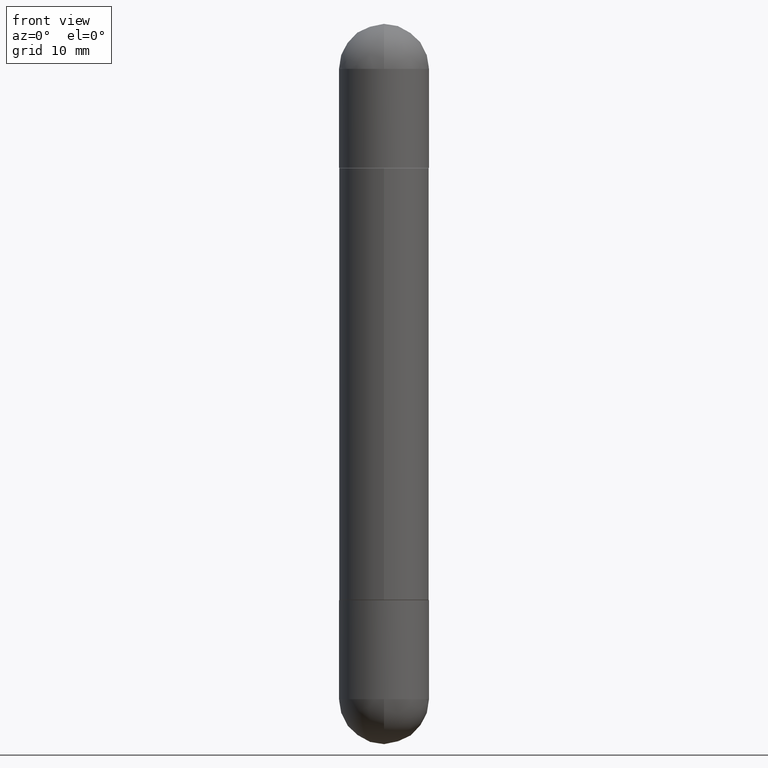
[diagram: clean part render]
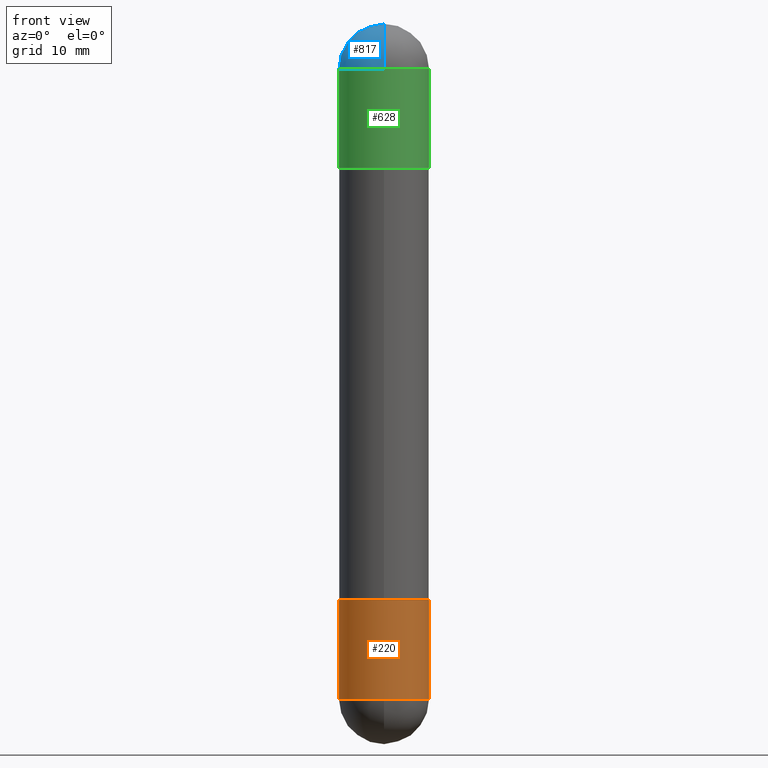
[diagram: same view with three faces highlighted in distinct colors, each labeled with its STEP entity id]
A machine part, front view with three faces highlighted in distinct colors.
Their STEP definitions:

[orange] entity #220 — the highlighted cylindrical surface (partial cylindrical patch) has radius 3.9688 mm, axis along (-0, 0, 1).
#33 = EDGE_CURVE ( 'NONE', #238, #249, #285, .T. ) ;
#50 = VECTOR ( 'NONE', #264, 39.37007874015748143 ) ;
#67 = LINE ( 'NONE', #616, #50 ) ;
#100 = CIRCLE ( 'NONE', #209, 0.1562500000000000000 ) ;
#101 = EDGE_CURVE ( 'NONE', #622, #325, #723, .T. ) ;
#109 = FACE_OUTER_BOUND ( 'NONE', #608, .T. ) ;
#139 = ORIENTED_EDGE ( 'NONE', *, *, #794, .F. ) ;
#171 = CARTESIAN_POINT ( 'NONE',  ( 0.000000000000000000, 0.000000000000000000, 0.000000000000000000 ) ) ;
#209 = AXIS2_PLACEMENT_3D ( 'NONE', #818, #446, #309 ) ;
#216 = DIRECTION ( 'NONE',  ( -2.445468806185136597E-29, 3.491481338843145583E-15, 1.000000000000000000 ) ) ;
#219 = CARTESIAN_POINT ( 'NONE',  ( -0.1562500000000000000, -6.472838008174800734E-15, -2.343750000000000000 ) ) ;
#220 = ADVANCED_FACE ( 'NONE', ( #109 ), #803, .T. ) ;
#233 = CARTESIAN_POINT ( 'NONE',  ( -0.1562500000000000000, -6.472838008174799945E-15, -2.000000000000000000 ) ) ;
#238 = VERTEX_POINT ( 'NONE', #233 ) ;
#249 = VERTEX_POINT ( 'NONE', #788 ) ;
#258 = ORIENTED_EDGE ( 'NONE', *, *, #101, .T. ) ;
#264 = DIRECTION ( 'NONE',  ( -2.445468806185136877E-29, 3.491481338843145188E-15, 1.000000000000000000 ) ) ;
#285 = CIRCLE ( 'NONE', #759, 0.1562500000000000000 ) ;
#309 = DIRECTION ( 'NONE',  ( 1.000000000000000000, -6.982962677686262766E-15, 0.000000000000000000 ) ) ;
#325 = VERTEX_POINT ( 'NONE', #430 ) ;
#339 = EDGE_CURVE ( 'NONE', #325, #438, #100, .T. ) ;
#347 = DIRECTION ( 'NONE',  ( -2.445468806185136597E-29, 3.491481338843145583E-15, 1.000000000000000000 ) ) ;
#362 = DIRECTION ( 'NONE',  ( 1.000000000000000000, -6.982962677686266711E-15, 4.876176775795936353E-29 ) ) ;
#368 = LINE ( 'NONE', #752, #494 ) ;
#392 = EDGE_CURVE ( 'NONE', #438, #249, #368, .T. ) ;
#430 = CARTESIAN_POINT ( 'NONE',  ( -1.110223024625101517E-15, -0.1562500000000085487, -2.343749999999999556 ) ) ;
#438 = VERTEX_POINT ( 'NONE', #567 ) ;
#446 = DIRECTION ( 'NONE',  ( -2.445468806185136597E-29, 3.491481338843145583E-15, 1.000000000000000000 ) ) ;
#461 = CARTESIAN_POINT ( 'NONE',  ( 4.890937612370273194E-29, -6.982962677686291165E-15, -2.000000000000000000 ) ) ;
#463 = CARTESIAN_POINT ( 'NONE',  ( 5.731567514496413899E-29, -8.183159387913622595E-15, -2.343750000000000000 ) ) ;
#489 = ORIENTED_EDGE ( 'NONE', *, *, #33, .F. ) ;
#494 = VECTOR ( 'NONE', #760, 39.37007874015748143 ) ;
#500 = ORIENTED_EDGE ( 'NONE', *, *, #392, .T. ) ;
#504 = ORIENTED_EDGE ( 'NONE', *, *, #339, .T. ) ;
#549 = AXIS2_PLACEMENT_3D ( 'NONE', #171, #674, #362 ) ;
#567 = CARTESIAN_POINT ( 'NONE',  ( 0.1562500000000000000, -8.674148951188436448E-15, -2.343750000000000000 ) ) ;
#596 = DIRECTION ( 'NONE',  ( 1.000000000000000000, -6.982962677686262766E-15, 0.000000000000000000 ) ) ;
#608 = EDGE_LOOP ( 'NONE', ( #139, #258, #504, #500, #489 ) ) ;
#616 = CARTESIAN_POINT ( 'NONE',  ( -0.1562500000000000000, 1.110223024625156540E-15, -7.685836078523291160E-30 ) ) ;
#622 = VERTEX_POINT ( 'NONE', #219 ) ;
#627 = AXIS2_PLACEMENT_3D ( 'NONE', #463, #216, #596 ) ;
#653 = DIRECTION ( 'NONE',  ( 1.000000000000000000, -6.982962677686269077E-15, 0.000000000000000000 ) ) ;
#674 = DIRECTION ( 'NONE',  ( -2.445468806185136597E-29, 3.491481338843145583E-15, 1.000000000000000000 ) ) ;
#723 = CIRCLE ( 'NONE', #627, 0.1562500000000000000 ) ;
#752 = CARTESIAN_POINT ( 'NONE',  ( 0.1562500000000000000, -1.091087918388479174E-15, 7.619026212181150377E-30 ) ) ;
#759 = AXIS2_PLACEMENT_3D ( 'NONE', #461, #347, #653 ) ;
#760 = DIRECTION ( 'NONE',  ( -2.445468806185136877E-29, 3.491481338843145188E-15, 1.000000000000000000 ) ) ;
#788 = CARTESIAN_POINT ( 'NONE',  ( 0.1562500000000000000, -8.074050596074770339E-15, -2.000000000000000000 ) ) ;
#794 = EDGE_CURVE ( 'NONE', #622, #238, #67, .T. ) ;
#803 = CYLINDRICAL_SURFACE ( 'NONE', #549, 0.1562500000000000000 ) ;
#818 = CARTESIAN_POINT ( 'NONE',  ( 5.731567514496413899E-29, -8.183159387913622595E-15, -2.343750000000000000 ) ) ;

[blue] entity #817 — the highlighted spherical surface has radius 3.9688 mm.
#10 = EDGE_CURVE ( 'NONE', #573, #451, #263, .T. ) ;
#12 = CARTESIAN_POINT ( 'NONE',  ( 5.789233224183170584E-29, -9.193318162129576161E-15, -3.073328992872296367E-16 ) ) ;
#20 = AXIS2_PLACEMENT_3D ( 'NONE', #459, #405, #663 ) ;
#73 = ORIENTED_EDGE ( 'NONE', *, *, #175, .F. ) ;
#77 = AXIS2_PLACEMENT_3D ( 'NONE', #113, #423, #290 ) ;
#112 = SPHERICAL_SURFACE ( 'NONE', #589, 0.1562500000000002498 ) ;
#113 = CARTESIAN_POINT ( 'NONE',  ( 5.400447736582527652E-29, -8.657341756053672891E-15, -0.1562500000000005551 ) ) ;
#174 = CARTESIAN_POINT ( 'NONE',  ( -1.071952812151746981E-15, -0.1562500000000085487, -0.1562500000000011102 ) ) ;
#175 = EDGE_CURVE ( 'NONE', #541, #274, #697, .T. ) ;
#177 = CIRCLE ( 'NONE', #493, 0.1562500000000002498 ) ;
#193 = ORIENTED_EDGE ( 'NONE', *, *, #609, .T. ) ;
#203 = ORIENTED_EDGE ( 'NONE', *, *, #269, .T. ) ;
#263 = CIRCLE ( 'NONE', #20, 0.1562500000000000000 ) ;
#269 = EDGE_CURVE ( 'NONE', #541, #573, #177, .T. ) ;
#274 = VERTEX_POINT ( 'NONE', #174 ) ;
#280 = CARTESIAN_POINT ( 'NONE',  ( 5.731567514496413899E-29, -8.183159387913622595E-15, -0.1562500000000005551 ) ) ;
#290 = DIRECTION ( 'NONE',  ( 6.860497997771530774E-15, 1.000000000000000000, 0.000000000000000000 ) ) ;
#293 = DIRECTION ( 'NONE',  ( -1.000000000000000000, 6.982962677686265922E-15, 4.883557194083112340E-29 ) ) ;
#316 = FACE_OUTER_BOUND ( 'NONE', #491, .T. ) ;
#365 = CARTESIAN_POINT ( 'NONE',  ( 5.400447736582527652E-29, -8.657341756053672891E-15, -0.1562500000000005551 ) ) ;
#383 = CARTESIAN_POINT ( 'NONE',  ( -0.1562500000000000000, -6.511108220648156257E-15, -0.1562500000000005551 ) ) ;
#405 = DIRECTION ( 'NONE',  ( 2.445468806185136597E-29, -3.491481338843145583E-15, 1.000000000000000000 ) ) ;
#422 = DIRECTION ( 'NONE',  ( 6.982962677686265922E-15, 1.000000000000000000, 3.496765431890251398E-15 ) ) ;
#423 = DIRECTION ( 'NONE',  ( 1.000000000000000000, -6.860497997771530774E-15, -4.840798879624142912E-29 ) ) ;
#451 = VERTEX_POINT ( 'NONE', #383 ) ;
#457 = CIRCLE ( 'NONE', #562, 0.1562500000000000000 ) ;
#459 = CARTESIAN_POINT ( 'NONE',  ( 5.731567514496413899E-29, -8.183159387913622595E-15, -0.1562500000000005551 ) ) ;
#460 = CARTESIAN_POINT ( 'NONE',  ( 1.091087918388535577E-15, 0.1562499999999916733, -0.1562500000000000000 ) ) ;
#465 = DIRECTION ( 'NONE',  ( 2.445468806185136597E-29, -3.491481338843145583E-15, 1.000000000000000000 ) ) ;
#479 = CARTESIAN_POINT ( 'NONE',  ( 5.400447736582527652E-29, -8.657341756053672891E-15, -0.1562500000000005551 ) ) ;
#491 = EDGE_LOOP ( 'NONE', ( #73, #203, #514, #193 ) ) ;
#493 = AXIS2_PLACEMENT_3D ( 'NONE', #479, #293, #613 ) ;
#514 = ORIENTED_EDGE ( 'NONE', *, *, #10, .T. ) ;
#531 = DIRECTION ( 'NONE',  ( 1.000000000000000000, -6.982962677686262766E-15, 0.000000000000000000 ) ) ;
#541 = VERTEX_POINT ( 'NONE', #12 ) ;
#562 = AXIS2_PLACEMENT_3D ( 'NONE', #280, #465, #531 ) ;
#573 = VERTEX_POINT ( 'NONE', #460 ) ;
#589 = AXIS2_PLACEMENT_3D ( 'NONE', #365, #684, #422 ) ;
#609 = EDGE_CURVE ( 'NONE', #451, #274, #457, .T. ) ;
#613 = DIRECTION ( 'NONE',  ( -6.982962677686265922E-15, -1.000000000000000000, 0.000000000000000000 ) ) ;
#663 = DIRECTION ( 'NONE',  ( 1.000000000000000000, -6.982962677686262766E-15, 0.000000000000000000 ) ) ;
#684 = DIRECTION ( 'NONE',  ( 1.000000000000000000, -6.982962677686265922E-15, -4.883557194083112340E-29 ) ) ;
#697 = CIRCLE ( 'NONE', #77, 0.1562500000000002498 ) ;
#817 = ADVANCED_FACE ( 'NONE', ( #316 ), #112, .T. ) ;

[green] entity #628 — the highlighted cylindrical surface (partial cylindrical patch) has radius 3.9688 mm, axis along (-0, 0, -1).
#51 = CARTESIAN_POINT ( 'NONE',  ( -0.1562500000000000000, -6.511108220648155468E-15, -0.5000000000000006661 ) ) ;
#76 = ORIENTED_EDGE ( 'NONE', *, *, #329, .T. ) ;
#99 = CARTESIAN_POINT ( 'NONE',  ( 0.1562500000000000000, -1.091087918388479174E-15, -2.500000000000000444 ) ) ;
#115 = EDGE_CURVE ( 'NONE', #274, #388, #150, .T. ) ;
#125 = ORIENTED_EDGE ( 'NONE', *, *, #609, .F. ) ;
#129 = EDGE_CURVE ( 'NONE', #451, #256, #147, .T. ) ;
#141 = DIRECTION ( 'NONE',  ( -2.445468806185136597E-29, 3.491481338843145583E-15, -1.000000000000000000 ) ) ;
#147 = LINE ( 'NONE', #338, #440 ) ;
#149 = CYLINDRICAL_SURFACE ( 'NONE', #179, 0.1562500000000000000 ) ;
#150 = CIRCLE ( 'NONE', #685, 0.1562500000000000000 ) ;
#174 = CARTESIAN_POINT ( 'NONE',  ( -1.071952812151746981E-15, -0.1562500000000085487, -0.1562500000000011102 ) ) ;
#179 = AXIS2_PLACEMENT_3D ( 'NONE', #711, #141, #391 ) ;
#181 = EDGE_CURVE ( 'NONE', #388, #764, #797, .T. ) ;
#182 = CARTESIAN_POINT ( 'NONE',  ( 4.890937612370273194E-29, -6.982962677686291165E-15, -0.5000000000000006661 ) ) ;
#234 = CARTESIAN_POINT ( 'NONE',  ( 0.1562500000000000000, -8.074050596074770339E-15, -0.5000000000000006661 ) ) ;
#240 = DIRECTION ( 'NONE',  ( -2.445468806185136877E-29, 3.491481338843145188E-15, -1.000000000000000000 ) ) ;
#256 = VERTEX_POINT ( 'NONE', #51 ) ;
#274 = VERTEX_POINT ( 'NONE', #174 ) ;
#280 = CARTESIAN_POINT ( 'NONE',  ( 5.731567514496413899E-29, -8.183159387913622595E-15, -0.1562500000000005551 ) ) ;
#286 = DIRECTION ( 'NONE',  ( -2.445468806185136877E-29, 3.491481338843145188E-15, -1.000000000000000000 ) ) ;
#329 = EDGE_CURVE ( 'NONE', #256, #764, #352, .T. ) ;
#338 = CARTESIAN_POINT ( 'NONE',  ( -0.1562500000000000000, 1.071952812151801807E-15, -2.500000000000000444 ) ) ;
#352 = CIRCLE ( 'NONE', #808, 0.1562500000000000000 ) ;
#379 = CARTESIAN_POINT ( 'NONE',  ( 0.1562500000000000000, -8.674148951188436448E-15, -0.1562500000000005551 ) ) ;
#383 = CARTESIAN_POINT ( 'NONE',  ( -0.1562500000000000000, -6.511108220648156257E-15, -0.1562500000000005551 ) ) ;
#388 = VERTEX_POINT ( 'NONE', #379 ) ;
#391 = DIRECTION ( 'NONE',  ( 1.000000000000000000, -6.982962677686266711E-15, 0.000000000000000000 ) ) ;
#440 = VECTOR ( 'NONE', #286, 39.37007874015748143 ) ;
#451 = VERTEX_POINT ( 'NONE', #383 ) ;
#457 = CIRCLE ( 'NONE', #562, 0.1562500000000000000 ) ;
#465 = DIRECTION ( 'NONE',  ( 2.445468806185136597E-29, -3.491481338843145583E-15, 1.000000000000000000 ) ) ;
#508 = DIRECTION ( 'NONE',  ( 1.000000000000000000, -6.982962677686269077E-15, 0.000000000000000000 ) ) ;
#509 = ORIENTED_EDGE ( 'NONE', *, *, #115, .F. ) ;
#528 = DIRECTION ( 'NONE',  ( 2.445468806185136597E-29, -3.491481338843145583E-15, 1.000000000000000000 ) ) ;
#531 = DIRECTION ( 'NONE',  ( 1.000000000000000000, -6.982962677686262766E-15, 0.000000000000000000 ) ) ;
#561 = VECTOR ( 'NONE', #240, 39.37007874015748143 ) ;
#562 = AXIS2_PLACEMENT_3D ( 'NONE', #280, #465, #531 ) ;
#570 = EDGE_LOOP ( 'NONE', ( #125, #664, #76, #623, #509 ) ) ;
#572 = DIRECTION ( 'NONE',  ( 2.445468806185136597E-29, -3.491481338843145583E-15, 1.000000000000000000 ) ) ;
#609 = EDGE_CURVE ( 'NONE', #451, #274, #457, .T. ) ;
#623 = ORIENTED_EDGE ( 'NONE', *, *, #181, .F. ) ;
#628 = ADVANCED_FACE ( 'NONE', ( #721 ), #149, .T. ) ;
#664 = ORIENTED_EDGE ( 'NONE', *, *, #129, .T. ) ;
#685 = AXIS2_PLACEMENT_3D ( 'NONE', #722, #528, #773 ) ;
#711 = CARTESIAN_POINT ( 'NONE',  ( 0.000000000000000000, 0.000000000000000000, -2.500000000000000444 ) ) ;
#721 = FACE_OUTER_BOUND ( 'NONE', #570, .T. ) ;
#722 = CARTESIAN_POINT ( 'NONE',  ( 5.731567514496413899E-29, -8.183159387913622595E-15, -0.1562500000000005551 ) ) ;
#764 = VERTEX_POINT ( 'NONE', #234 ) ;
#773 = DIRECTION ( 'NONE',  ( 1.000000000000000000, -6.982962677686262766E-15, 0.000000000000000000 ) ) ;
#797 = LINE ( 'NONE', #99, #561 ) ;
#808 = AXIS2_PLACEMENT_3D ( 'NONE', #182, #572, #508 ) ;